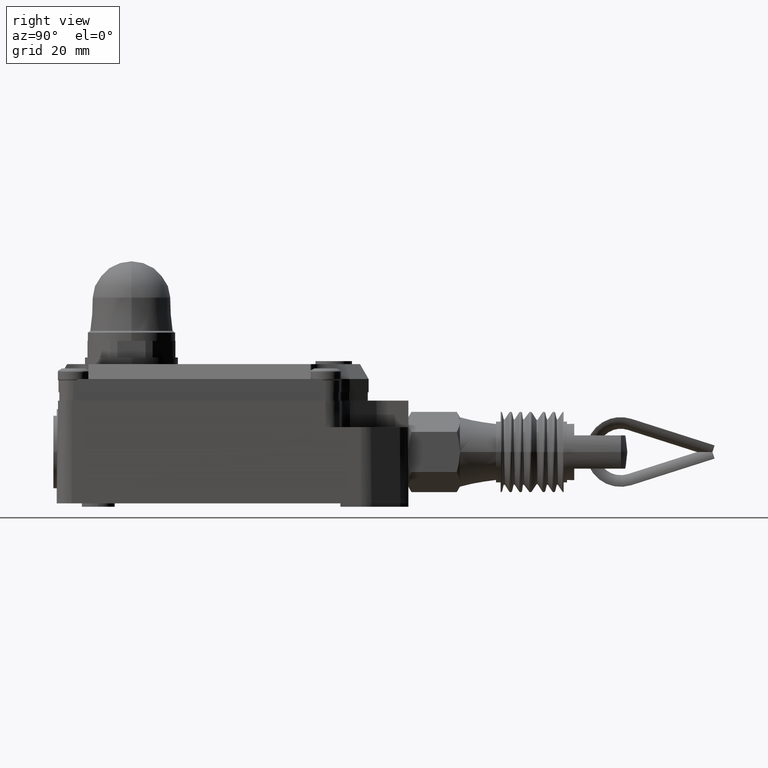
[diagram: clean part render]
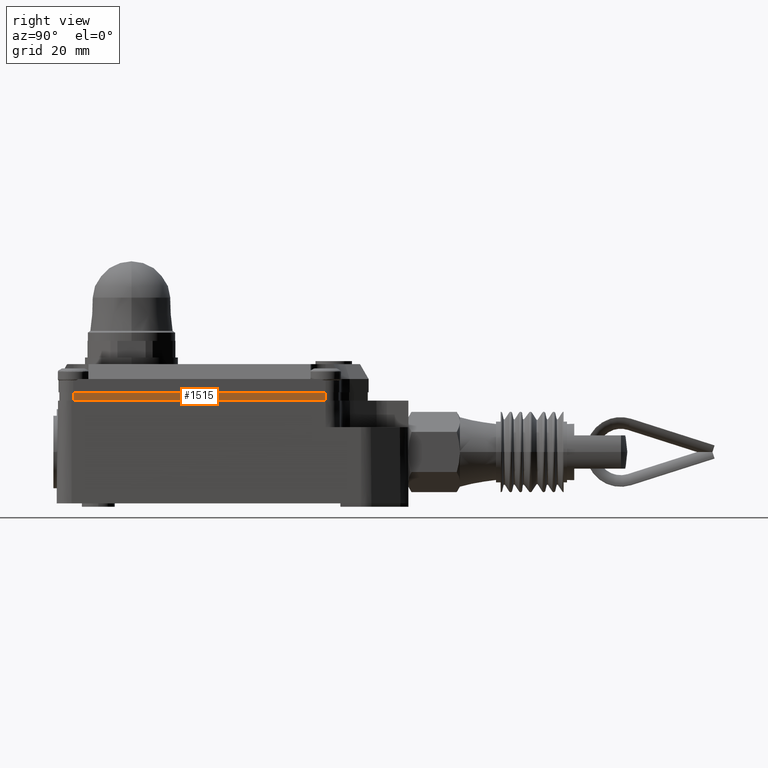
[diagram: same view with one face highlighted and labeled with its STEP entity id]
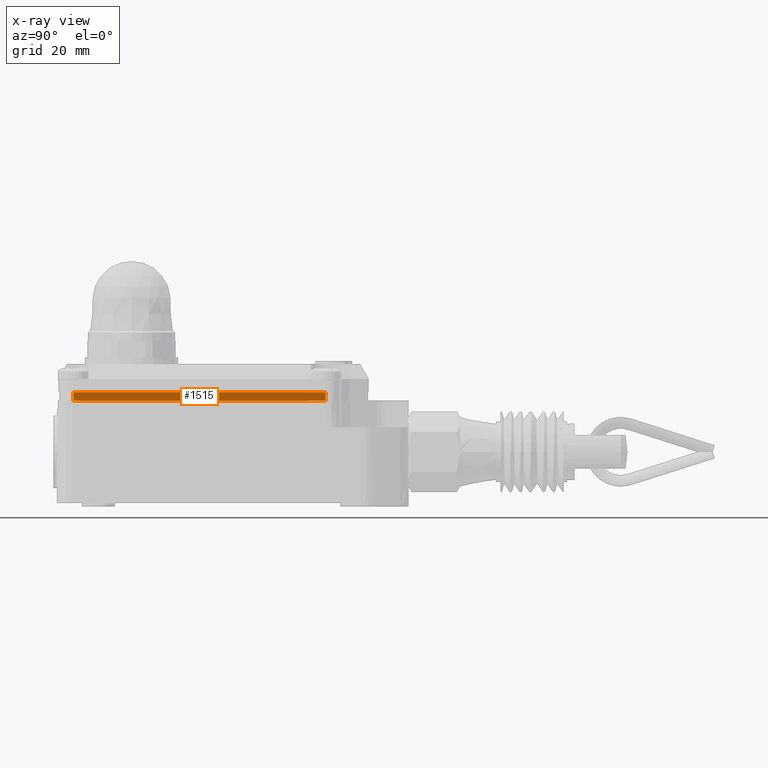
[diagram: x-ray of the same camera — body ghosted, the highlighted face saturated]
A machine part, right view. The second image highlights one B-rep face of the part: STEP entity #1515.
The next image is the same camera in x-ray: the body ghosted, the highlighted face saturated — about 0% of this face is hidden behind the body in this view.
In plain terms, the highlighted planar face has unit normal (1, 0, 0).
Its self-contained STEP definition (entity closure, byte-faithful):
#1515=ADVANCED_FACE('',(#3162),#3163,.T.);
#3162=FACE_OUTER_BOUND('',#4939,.T.);
#3163=PLANE('',#4940);
#4939=EDGE_LOOP('',(#9275,#9276,#9277,#9278));
#4940=AXIS2_PLACEMENT_3D('',#9279,#9280,#9281);
#9275=ORIENTED_EDGE('',*,*,#12052,.T.);
#9276=ORIENTED_EDGE('',*,*,#12082,.F.);
#9277=ORIENTED_EDGE('',*,*,#12083,.F.);
#9278=ORIENTED_EDGE('',*,*,#12079,.T.);
#9279=CARTESIAN_POINT('',(57.6604298117,44.0400000000242,32.0));
#9280=DIRECTION('',(1.0,0.0,0.0));
#9281=DIRECTION('',(0.0,0.0,-1.0));
#12052=EDGE_CURVE('',#14779,#14777,#14780,.T.);
#12079=EDGE_CURVE('',#14813,#14779,#14814,.T.);
#12082=EDGE_CURVE('',#14817,#14777,#14818,.T.);
#12083=EDGE_CURVE('',#14813,#14817,#14819,.T.);
#14777=VERTEX_POINT('',#18848);
#14779=VERTEX_POINT('',#18850);
#14780=LINE('',#18851,#18852);
#14813=VERTEX_POINT('',#18897);
#14814=LINE('',#18898,#18899);
#14817=VERTEX_POINT('',#18902);
#14818=LINE('',#18903,#18904);
#14819=LINE('',#18905,#18906);
#18848=CARTESIAN_POINT('',(57.6604298117,6.04000000000001,34.5));
#18850=CARTESIAN_POINT('',(57.6604298117,82.0400000000484,34.5));
#18851=CARTESIAN_POINT('',(57.6604298117,82.04,34.5));
#18852=VECTOR('',#21930,1.0);
#18897=CARTESIAN_POINT('',(57.6604298117,82.0400000000484,32.0));
#18898=CARTESIAN_POINT('',(57.6604298117,82.0400000000484,32.0));
#18899=VECTOR('',#21952,1.0);
#18902=CARTESIAN_POINT('',(57.6604298117,6.04000000000001,32.0));
#18903=CARTESIAN_POINT('',(57.6604298117,6.04000000000001,32.0));
#18904=VECTOR('',#21956,1.0);
#18905=CARTESIAN_POINT('',(57.6604298117,48.2847462311044,32.0));
#18906=VECTOR('',#21957,1.0);
#21930=DIRECTION('',(0.0,-1.0,0.0));
#21952=DIRECTION('',(0.0,0.0,1.0));
#21956=DIRECTION('',(0.0,0.0,1.0));
#21957=DIRECTION('',(0.0,-1.0,0.0));